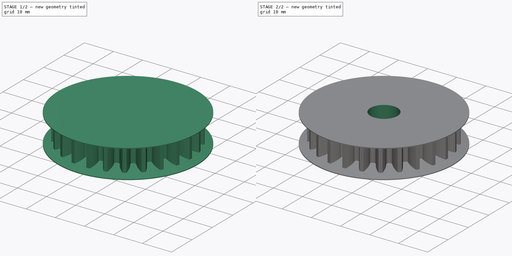
[diagram: build sequence overview — one tinted view per stage of 2, left to right]
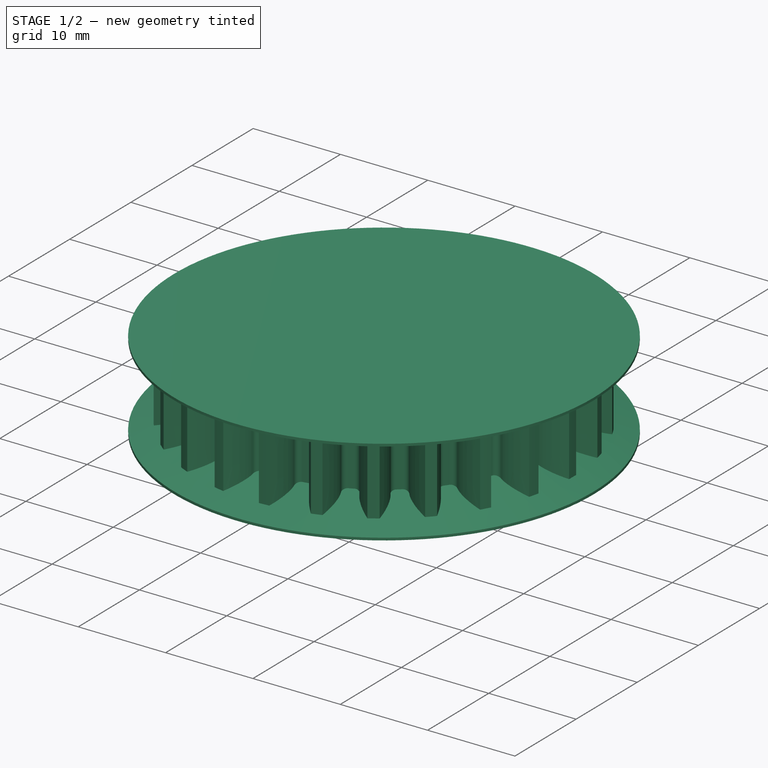
[diagram: stage 1 of 2 — iso view after this stage's code; geometry added in this stage tinted green]
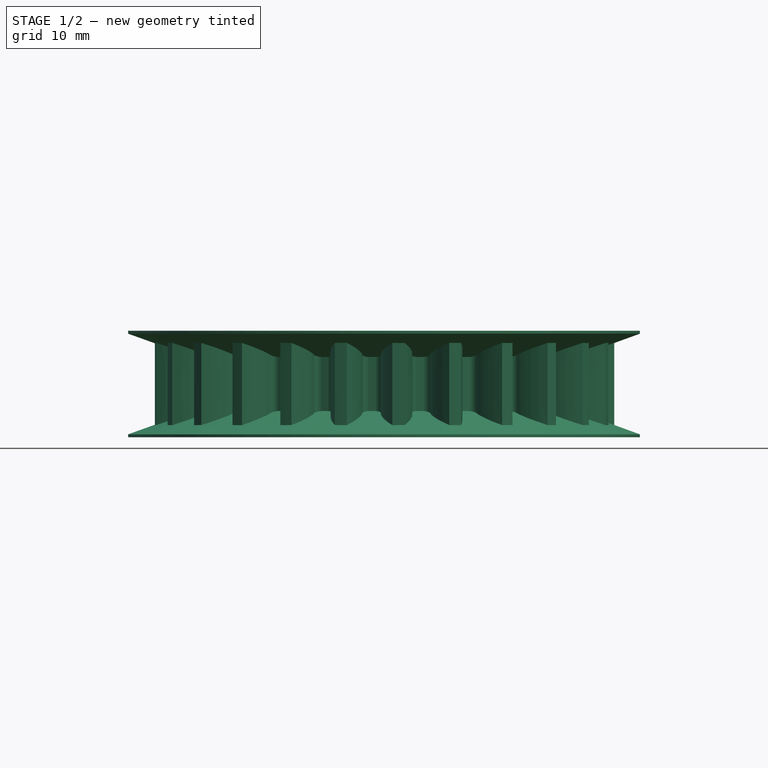
[diagram: stage 1 of 2 — front view after this stage's code; geometry added in this stage tinted green]
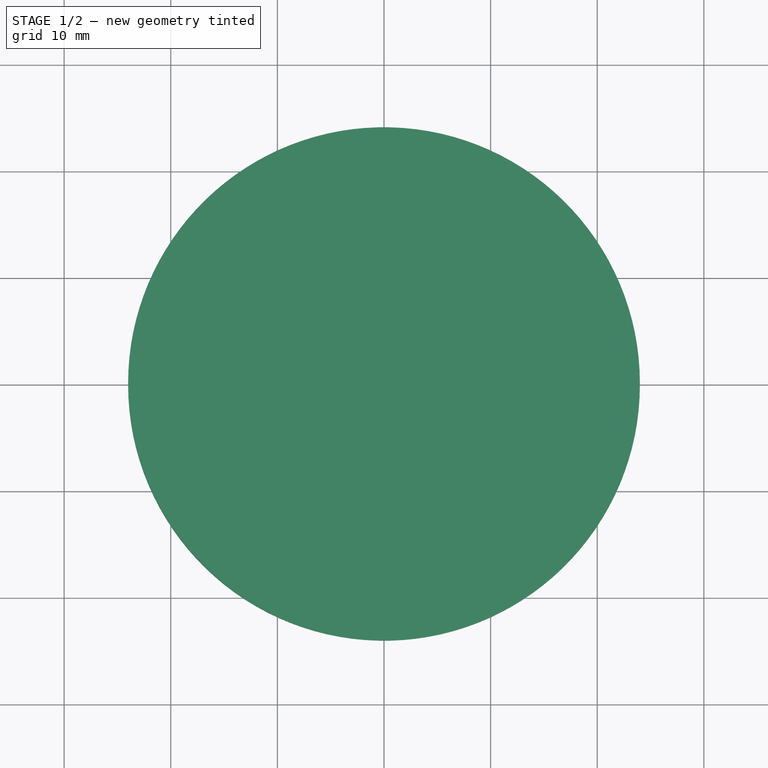
[diagram: stage 1 of 2 — top view after this stage's code; geometry added in this stage tinted green]
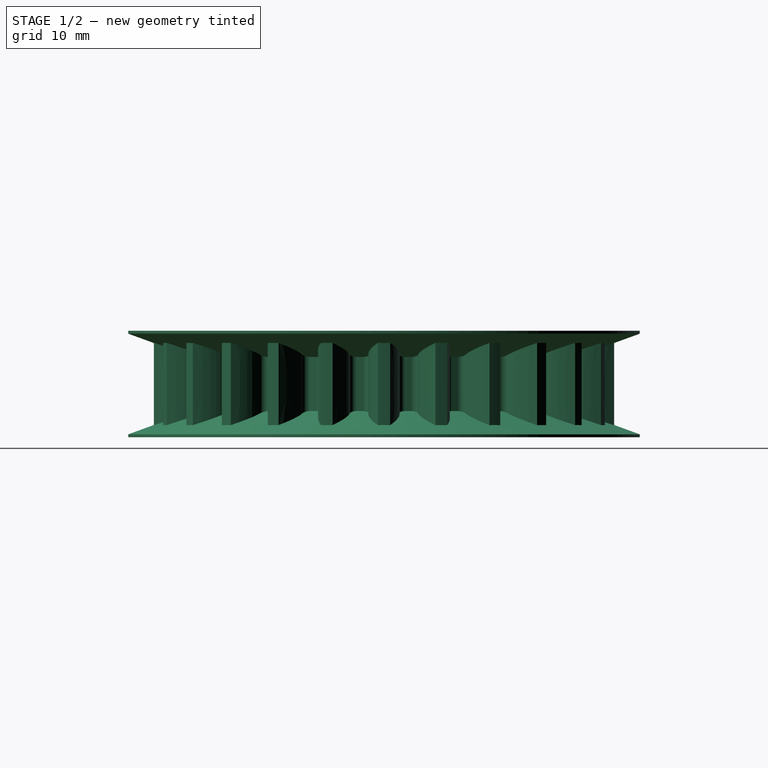
[diagram: stage 1 of 2 — right view after this stage's code; geometry added in this stage tinted green]
FCSTD DOCUMENT  (FreeCAD 0.16R)
Label: kolo_male
License: All rights reserved
LicenseURL: http://en.wikipedia.org/wiki/All_rights_reserved
objects: Sketcher::SketchObject×2, Part::Part2DObjectPython×1, PartDesign::Pad×1, PartDesign::Revolution×1, Part::Fuse×1, PartDesign::Pocket×1
note: 10 computed .brp shape members not serialized (recipe doc carries the construction recipe); baked Part::Feature solids carry a one-line shape summary decoded from their .brp

FEATURE [Part::Part2DObjectPython] InvoluteGear  # Draft 2D object (typed FeaturePython)
  ExternalGear = true
  HighPrecision = true
  Modules = 1.6
  NumberOfTeeth = 25
  Placement = pos=(0,0,-4) rot=(0,0,1;0rad)
  PressureAngle = 20
FEATURE [PartDesign::Pad] Pad
  Length = 8
  Length2 = 100
  Placement = pos=(0,0,-4) rot=(0,0,1;0rad)
  Sketch = -> InvoluteGear
  Type = 0
FEATURE [Sketcher::SketchObject] Sketch
  Placement = pos=(0,0,0) rot=(-1,0,0;4.71239rad)
  sketch-geometry (9):
    g0: LineSegment StartX=0 StartY=5 StartZ=0 EndX=0 EndY=-5 EndZ=0
    g1: LineSegment StartX=0 StartY=-5 StartZ=0 EndX=24 EndY=-5 EndZ=0
    g2: LineSegment StartX=24 StartY=-5 StartZ=0 EndX=24 EndY=-4.72022 EndZ=0
    g3: LineSegment StartX=24 StartY=-4.72022 StartZ=0 EndX=17.9 EndY=-2.5 EndZ=0
    g4: LineSegment StartX=17.9 StartY=-2.5 StartZ=0 EndX=17.9 EndY=2.5 EndZ=0
    g5: LineSegment StartX=17.9 StartY=2.5 StartZ=0 EndX=24 EndY=4.72022 EndZ=0
    g6: LineSegment StartX=24 StartY=4.72022 StartZ=0 EndX=24 EndY=5 EndZ=0
    g7: LineSegment StartX=24 StartY=5 StartZ=0 EndX=0 EndY=5 EndZ=0
    g8: LineSegment [constr] StartX=17.9 StartY=2.5 StartZ=0 EndX=22.9 EndY=2.5 EndZ=0
  constraints (26):
    c: PointOnObject(g0,g-2)
    c: PointOnObject(g0,g-2)
    c: Coincident(g1,g0)
    c: Horizontal(g1)
    c: Vertical(g2)
    c: Coincident(g3,g2)
    c: Coincident(g4,g3)
    c: Coincident(g5,g4)
    c: Coincident(g6,g5)
    c: Vertical(g6)
    c: Coincident(g7,g6)
    c: Coincident(g7,g0)
    c: Horizontal(g7)
    c: Vertical(g4)
    c: Coincident(g2,g1)
    c: DistanceY(g4,g4) = 5
    c: Symmetric(g0,g0,g-1)
    c: Symmetric(g3,g4,g-1)
    c: Symmetric(g5,g2,g-1)
    c: DistanceX(g0,g3) = 17.9
    c: Coincident(g8,g4)
    c: Horizontal(g8)
    c: Angle(g8,g5) = 0.349066
    c: DistanceY(g0,g0) = 10
    c: DistanceX(g0,g1) = 24
    c: DistanceX(g8,g8) = 5
FEATURE [PartDesign::Revolution] Revolution
  Angle = 360
  Axis = (0,0,1)
  Base = (0,0,0)
  Placement = pos=(0,0,0) rot=(-1,0,0;4.71239rad)
  ReferenceAxis = -> Sketch [V_Axis]
  Reversed = true
  Sketch = -> Sketch
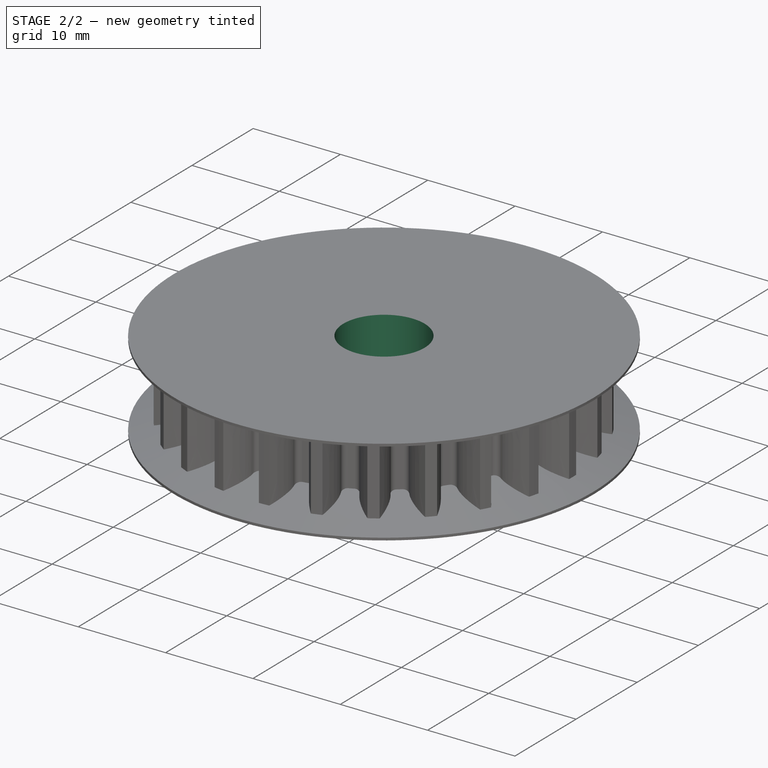
[diagram: stage 2 of 2 — iso view after this stage's code; geometry added in this stage tinted green]
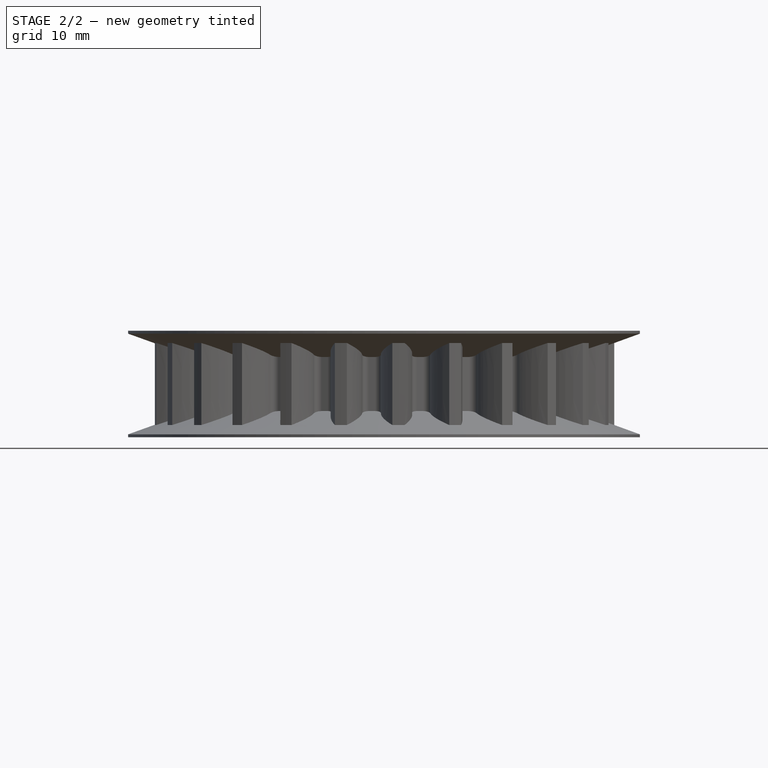
[diagram: stage 2 of 2 — front view after this stage's code; geometry added in this stage tinted green]
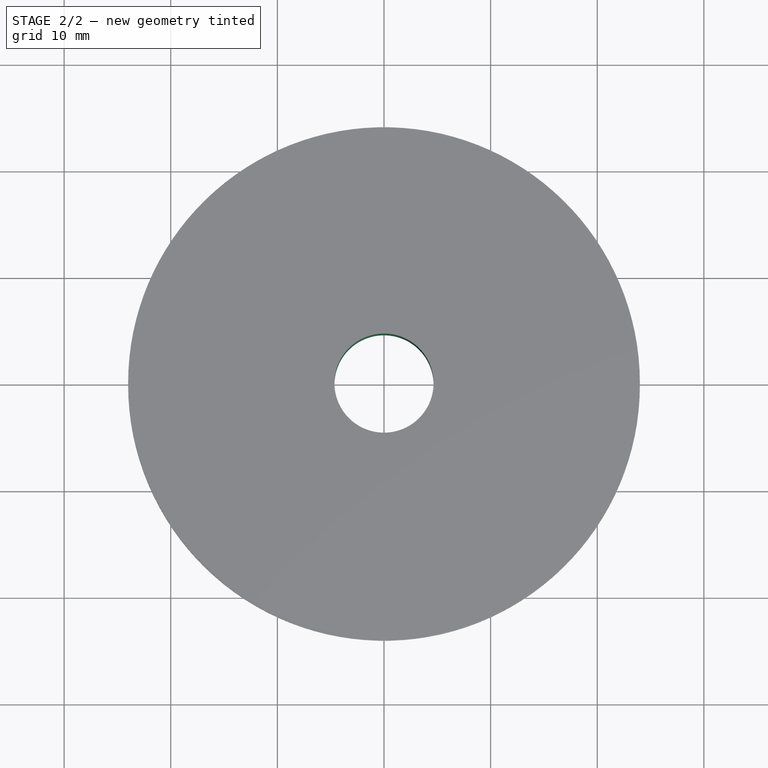
[diagram: stage 2 of 2 — top view after this stage's code; geometry added in this stage tinted green]
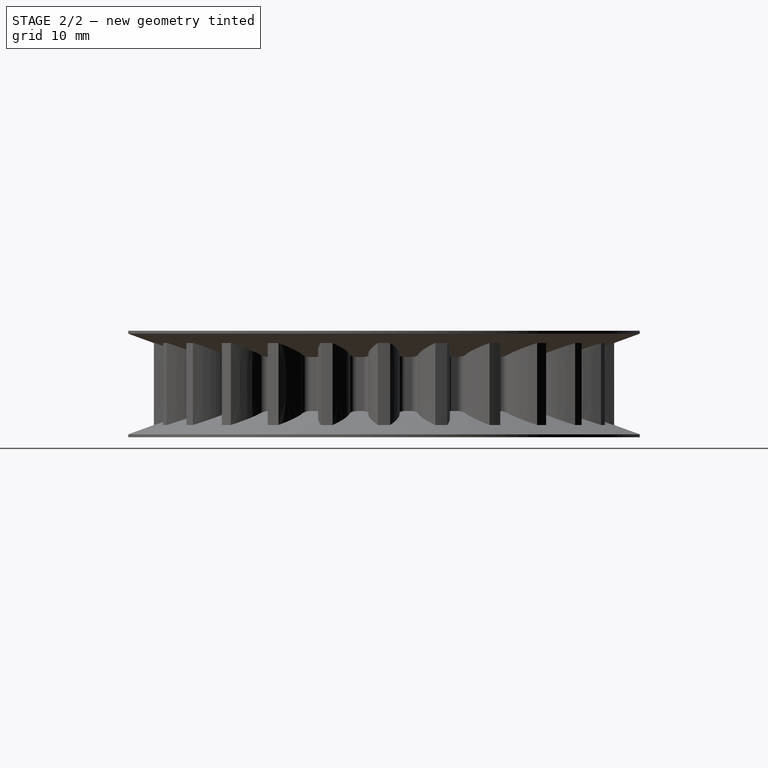
[diagram: stage 2 of 2 — right view after this stage's code; geometry added in this stage tinted green]
FEATURE [Part::Fuse] Fusion
  Base = -> Pad
  Tool = -> Revolution
FEATURE [Sketcher::SketchObject] Sketch001
  Placement = pos=(0,0,5) rot=(0,0,1;0rad)
  Support = -> Fusion [Face256]
  sketch-geometry (1):
    g0: Circle CenterX=0 CenterY=0 CenterZ=0 NormalX=0 NormalY=0 NormalZ=1 Radius=4.65
  constraints (2):
    c: Coincident(g0,g-1)
    c: Radius(g0) = 4.65
FEATURE [PartDesign::Pocket] Pocket
  Length = 0
  Sketch = -> Sketch001
  Type = 3
  UpToFace = -> Fusion [Face1]
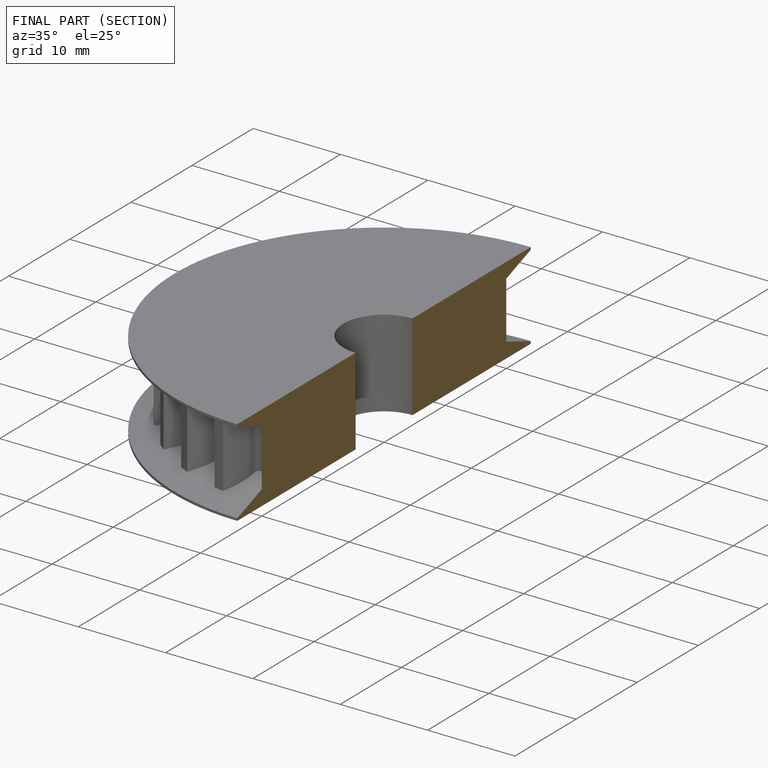
[diagram: finished part — half-section view (interior)]
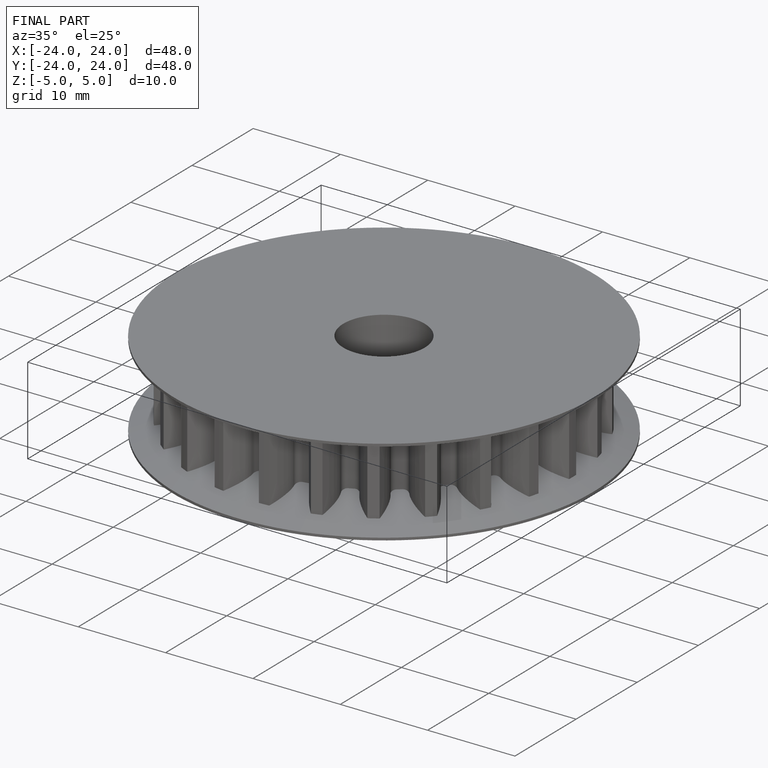
[diagram: finished part — iso view with bounding-box wireframe]
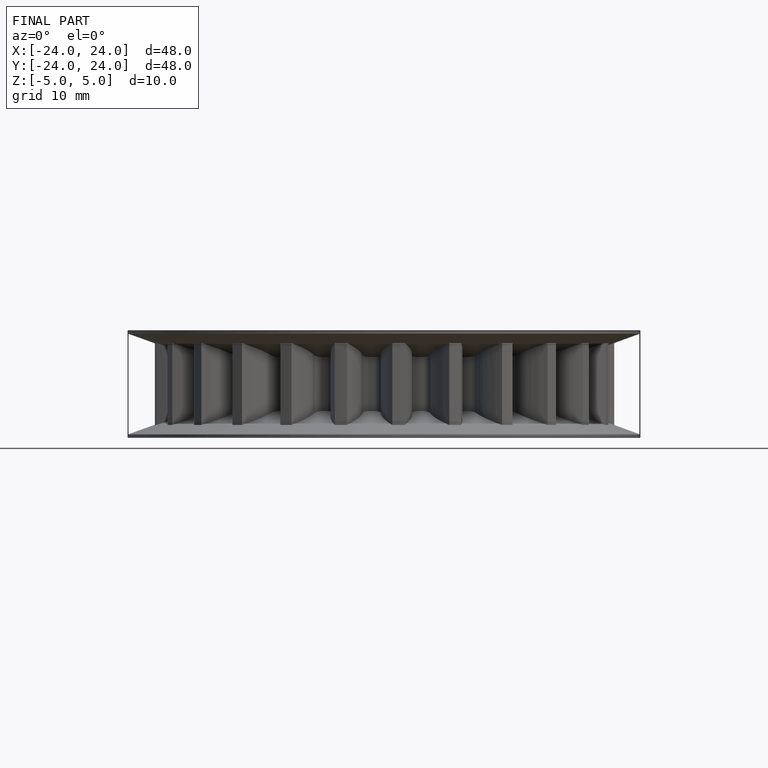
[diagram: finished part — front view with bounding-box wireframe]
